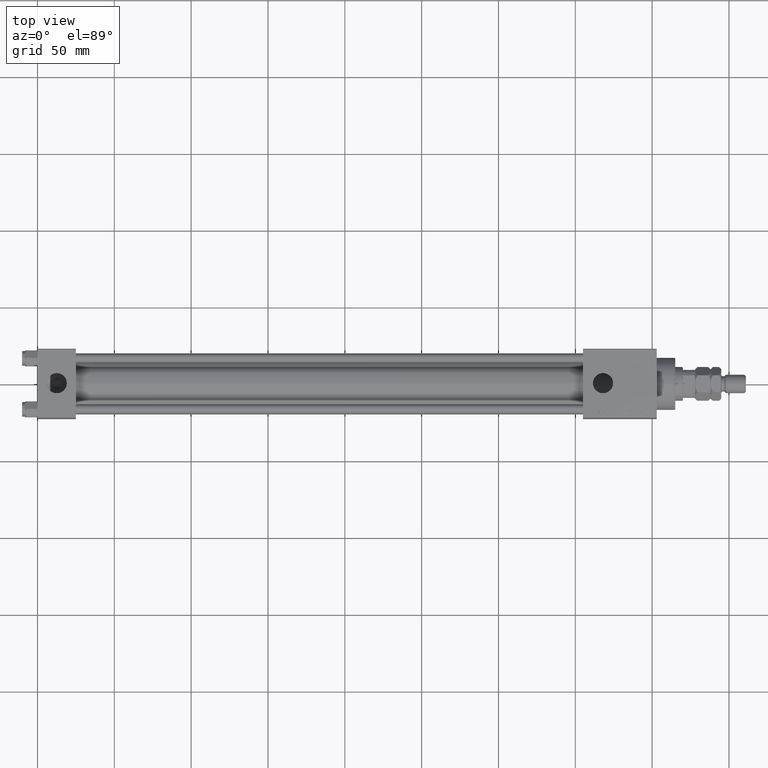
[diagram: clean part render]
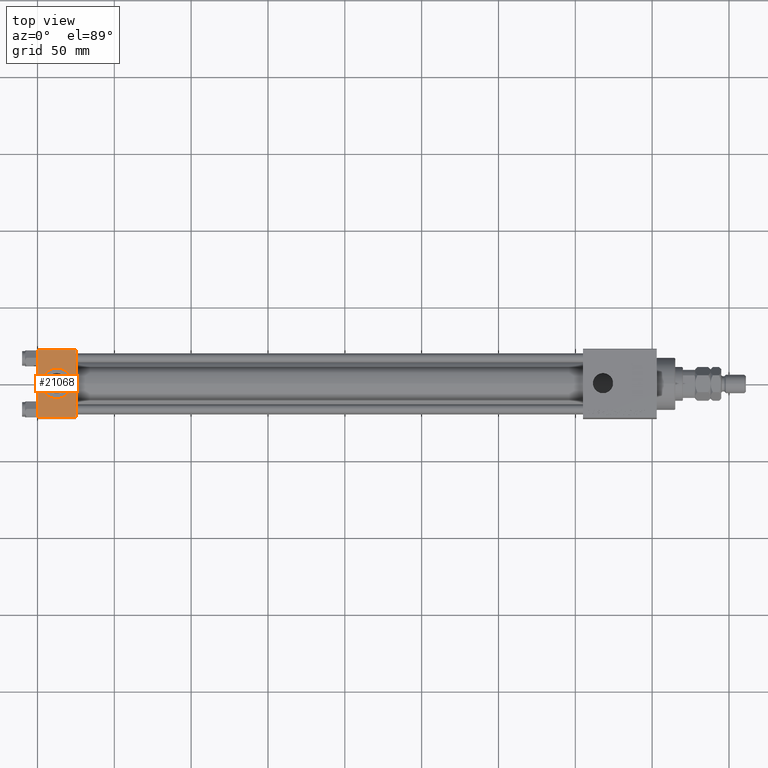
[diagram: same view with one face highlighted and labeled with its STEP entity id]
A machine part, top view. The second image highlights one B-rep face of the part: STEP entity #21068.
In plain terms, the highlighted planar face has unit normal (0, 0, -1).
Its self-contained STEP definition (entity closure, byte-faithful):
#372 = DIRECTION ( 'NONE',  ( 0.000000000000000000, 7.709882115452476934E-17, -1.000000000000000000 ) ) ;
#633 = DIRECTION ( 'NONE',  ( 0.000000000000000000, 0.000000000000000000, 1.000000000000000000 ) ) ;
#2413 = DIRECTION ( 'NONE',  ( 0.000000000000000000, -1.000000000000000000, -7.709882115452476934E-17 ) ) ;
#2917 = CARTESIAN_POINT ( 'NONE',  ( 0.000000000000000000, 21.99999999999999289, 22.50000000000000355 ) ) ;
#3430 = ORIENTED_EDGE ( 'NONE', *, *, #39385, .F. ) ;
#3810 = VECTOR ( 'NONE', #2413, 1000.000000000000000 ) ;
#4432 = FACE_BOUND ( 'NONE', #38159, .T. ) ;
#4866 = LINE ( 'NONE', #50271, #3810 ) ;
#6666 = ORIENTED_EDGE ( 'NONE', *, *, #25094, .T. ) ;
#8131 = VECTOR ( 'NONE', #18935, 1000.000000000000000 ) ;
#9156 = CARTESIAN_POINT ( 'NONE',  ( 12.50000000000000000, -1.734723475976807094E-15, 22.50000000000000000 ) ) ;
#10259 = CARTESIAN_POINT ( 'NONE',  ( 25.00000000000000000, -21.99999999999997868, 22.50000000000000000 ) ) ;
#11838 = AXIS2_PLACEMENT_3D ( 'NONE', #16342, #633, #24965 ) ;
#16094 = ORIENTED_EDGE ( 'NONE', *, *, #28866, .F. ) ;
#16118 = CIRCLE ( 'NONE', #11838, 9.999999999999998224 ) ;
#16342 = CARTESIAN_POINT ( 'NONE',  ( 12.50000000000000000, -1.734723475976807094E-15, 22.50000000000000000 ) ) ;
#16389 = VERTEX_POINT ( 'NONE', #26950 ) ;
#18195 = AXIS2_PLACEMENT_3D ( 'NONE', #9156, #21587, #25110 ) ;
#18935 = DIRECTION ( 'NONE',  ( 1.000000000000000000, 0.000000000000000000, 0.000000000000000000 ) ) ;
#19883 = VECTOR ( 'NONE', #47109, 1000.000000000000000 ) ;
#21068 = ADVANCED_FACE ( 'NONE', ( #4432, #21176 ), #24966, .F. ) ;
#21176 = FACE_OUTER_BOUND ( 'NONE', #35306, .T. ) ;
#21587 = DIRECTION ( 'NONE',  ( 0.000000000000000000, 0.000000000000000000, 1.000000000000000000 ) ) ;
#22077 = ORIENTED_EDGE ( 'NONE', *, *, #52041, .F. ) ;
#23373 = DIRECTION ( 'NONE',  ( -1.000000000000000000, 0.000000000000000000, 0.000000000000000000 ) ) ;
#24966 = PLANE ( 'NONE',  #29603 ) ;
#24965 = DIRECTION ( 'NONE',  ( 1.000000000000000000, 0.000000000000000000, 0.000000000000000000 ) ) ;
#25094 = EDGE_CURVE ( 'NONE', #31417, #32011, #36858, .T. ) ;
#25110 = DIRECTION ( 'NONE',  ( 1.000000000000000000, 0.000000000000000000, 0.000000000000000000 ) ) ;
#26310 = EDGE_CURVE ( 'NONE', #41351, #43669, #44317, .T. ) ;
#26837 = CARTESIAN_POINT ( 'NONE',  ( 22.50000000000000000, -1.734723475976807094E-15, 22.50000000000000000 ) ) ;
#26950 = CARTESIAN_POINT ( 'NONE',  ( 2.500000000000003997, -5.100766768294543310E-16, 22.50000000000000000 ) ) ;
#27403 = CARTESIAN_POINT ( 'NONE',  ( 0.000000000000000000, 21.99999999999999289, 22.50000000000000355 ) ) ;
#28866 = EDGE_CURVE ( 'NONE', #31417, #43669, #4866, .T. ) ;
#29603 = AXIS2_PLACEMENT_3D ( 'NONE', #41980, #372, #33330 ) ;
#31145 = CARTESIAN_POINT ( 'NONE',  ( 0.000000000000000000, 22.50000000000000000, 22.50000000000000355 ) ) ;
#31417 = VERTEX_POINT ( 'NONE', #48455 ) ;
#32011 = VERTEX_POINT ( 'NONE', #2917 ) ;
#33330 = DIRECTION ( 'NONE',  ( 0.000000000000000000, 1.000000000000000000, 7.709882115452476934E-17 ) ) ;
#35306 = EDGE_LOOP ( 'NONE', ( #38228, #38933, #16094, #6666 ) ) ;
#36858 = LINE ( 'NONE', #27403, #42581 ) ;
#38159 = EDGE_LOOP ( 'NONE', ( #22077, #3430 ) ) ;
#38228 = ORIENTED_EDGE ( 'NONE', *, *, #50770, .T. ) ;
#38933 = ORIENTED_EDGE ( 'NONE', *, *, #26310, .T. ) ;
#39385 = EDGE_CURVE ( 'NONE', #16389, #40274, #16118, .T. ) ;
#39961 = CARTESIAN_POINT ( 'NONE',  ( 0.000000000000000000, -21.99999999999997868, 22.50000000000000000 ) ) ;
#40274 = VERTEX_POINT ( 'NONE', #26837 ) ;
#41351 = VERTEX_POINT ( 'NONE', #39961 ) ;
#41487 = CIRCLE ( 'NONE', #18195, 9.999999999999998224 ) ;
#41980 = CARTESIAN_POINT ( 'NONE',  ( 25.00000000000000000, 22.50000000000000000, 22.50000000000000355 ) ) ;
#42581 = VECTOR ( 'NONE', #23373, 1000.000000000000000 ) ;
#43669 = VERTEX_POINT ( 'NONE', #10259 ) ;
#44317 = LINE ( 'NONE', #44853, #8131 ) ;
#44853 = CARTESIAN_POINT ( 'NONE',  ( 25.00000000000000000, -21.99999999999999289, 22.50000000000000000 ) ) ;
#47109 = DIRECTION ( 'NONE',  ( 0.000000000000000000, -1.000000000000000000, -7.709882115452476934E-17 ) ) ;
#47646 = LINE ( 'NONE', #31145, #19883 ) ;
#48455 = CARTESIAN_POINT ( 'NONE',  ( 25.00000000000000000, 21.99999999999999289, 22.50000000000000355 ) ) ;
#50271 = CARTESIAN_POINT ( 'NONE',  ( 25.00000000000000000, 22.50000000000000000, 22.50000000000000355 ) ) ;
#50770 = EDGE_CURVE ( 'NONE', #32011, #41351, #47646, .T. ) ;
#52041 = EDGE_CURVE ( 'NONE', #40274, #16389, #41487, .T. ) ;